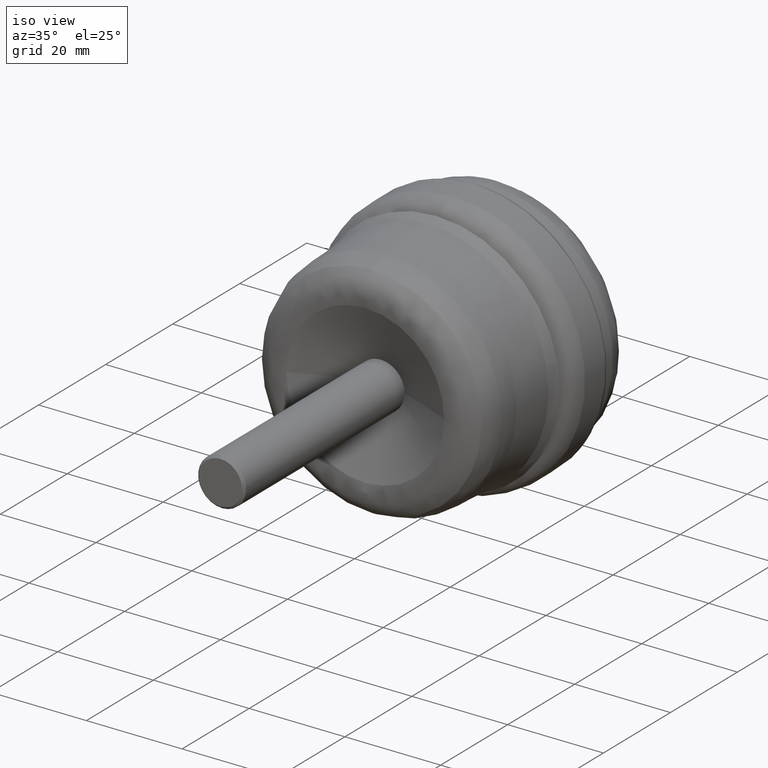
[diagram: clean part render]
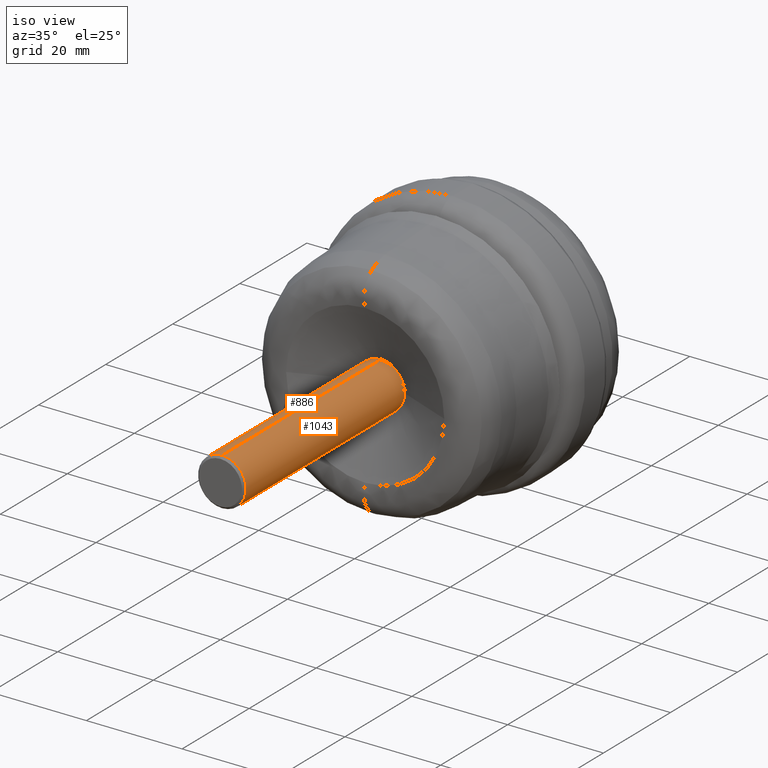
[diagram: same view with one multi-face feature highlighted, each face labeled with its STEP entity id]
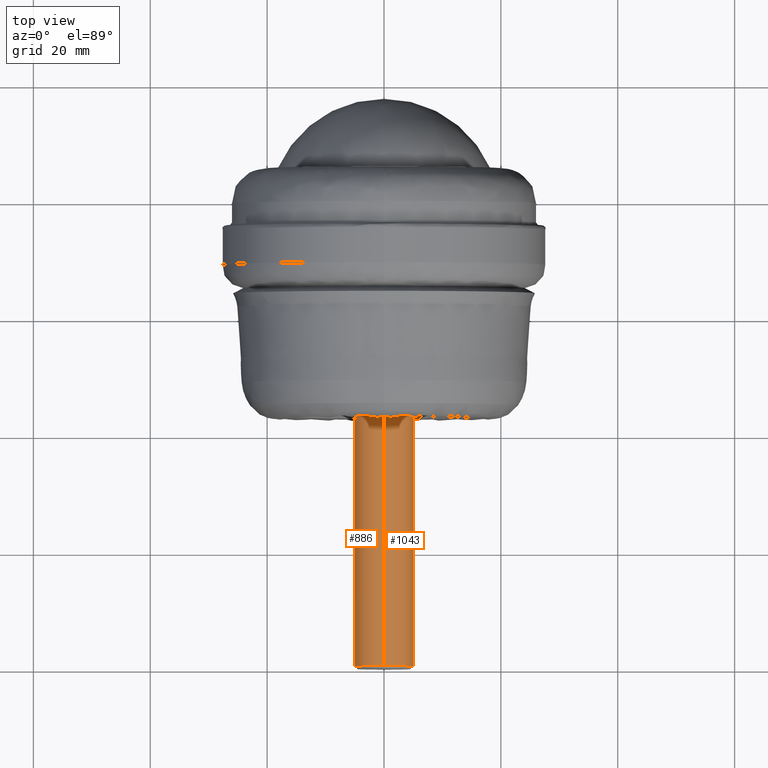
[diagram: same view with one multi-face feature highlighted, each face labeled with its STEP entity id]
A machine part, iso view. The highlighted faces form ONE feature: a constant-radius fillet chain: 2 tangent blend faces with common blend radius 5 mm. The faces share edges in the B-rep.
A second angle (top view) of the same feature is appended — it is thin or edge-on in the first view.
Their STEP definitions:
[1] entity #1043 (Cylinder):
#1 = CARTESIAN_POINT ( 'NONE',  ( 6.123233995736765296E-16, 47.79664580457854584, 4.999999999999999112 ) ) ;
#65 = CARTESIAN_POINT ( 'NONE',  ( 0.0000000000000000000, 0.0000000000000000000, 0.0000000000000000000 ) ) ;
#77 = VERTEX_POINT ( 'NONE', #252 ) ;
#86 = ORIENTED_EDGE ( 'NONE', *, *, #1460, .T. ) ;
#95 = EDGE_CURVE ( 'NONE', #1481, #772, #986, .T. ) ;
#252 = CARTESIAN_POINT ( 'NONE',  ( 6.123233995745674494E-16, 0.4999999999999983902, -5.000000000007275069 ) ) ;
#327 = CIRCLE ( 'NONE', #1037, 4.999999999999999112 ) ;
#362 = DIRECTION ( 'NONE',  ( 0.0000000000000000000, 0.0000000000000000000, -1.000000000000000000 ) ) ;
#402 = ORIENTED_EDGE ( 'NONE', *, *, #95, .T. ) ;
#429 = EDGE_LOOP ( 'NONE', ( #402, #86, #765, #1680, #1711 ) ) ;
#451 = EDGE_CURVE ( 'NONE', #610, #77, #1009, .T. ) ;
#506 = VECTOR ( 'NONE', #1267, 1000.000000000000000 ) ;
#557 = VERTEX_POINT ( 'NONE', #806 ) ;
#560 = CARTESIAN_POINT ( 'NONE',  ( 0.0000000000000000000, 47.79664580457854584, 0.0000000000000000000 ) ) ;
#603 = EDGE_CURVE ( 'NONE', #557, #1481, #327, .T. ) ;
#610 = VERTEX_POINT ( 'NONE', #999 ) ;
#689 = DIRECTION ( 'NONE',  ( -0.0000000000000000000, -1.000000000000000000, -0.0000000000000000000 ) ) ;
#765 = ORIENTED_EDGE ( 'NONE', *, *, #451, .T. ) ;
#772 = VERTEX_POINT ( 'NONE', #1 ) ;
#804 = DIRECTION ( 'NONE',  ( -0.0000000000000000000, -1.000000000000000000, -0.0000000000000000000 ) ) ;
#806 = CARTESIAN_POINT ( 'NONE',  ( 0.0000000000000000000, 47.79664580457854584, -4.999999999999999112 ) ) ;
#948 = AXIS2_PLACEMENT_3D ( 'NONE', #65, #804, #362 ) ;
#952 = CARTESIAN_POINT ( 'NONE',  ( 0.0000000000000000000, 0.0000000000000000000, -4.999999999999999112 ) ) ;
#986 = CIRCLE ( 'NONE', #1332, 4.999999999999999112 ) ;
#999 = CARTESIAN_POINT ( 'NONE',  ( 0.0000000000000000000, 0.4999999999999983902, 5.000000000007275069 ) ) ;
#1009 = CIRCLE ( 'NONE', #1394, 4.999999999999999112 ) ;
#1037 = AXIS2_PLACEMENT_3D ( 'NONE', #560, #689, #1699 ) ;
#1040 = LINE ( 'NONE', #1340, #1223 ) ;
#1043 = ADVANCED_FACE ( 'NONE', ( #1458 ), #1403, .T. ) ;
#1050 = DIRECTION ( 'NONE',  ( -0.0000000000000000000, -1.000000000000000000, -0.0000000000000000000 ) ) ;
#1084 = EDGE_CURVE ( 'NONE', #557, #77, #1655, .T. ) ;
#1223 = VECTOR ( 'NONE', #1050, 1000.000000000000000 ) ;
#1267 = DIRECTION ( 'NONE',  ( -0.0000000000000000000, -1.000000000000000000, -0.0000000000000000000 ) ) ;
#1282 = DIRECTION ( 'NONE',  ( -0.0000000000000000000, -1.000000000000000000, -0.0000000000000000000 ) ) ;
#1288 = DIRECTION ( 'NONE',  ( 0.0000000000000000000, 0.0000000000000000000, -1.000000000000000000 ) ) ;
#1332 = AXIS2_PLACEMENT_3D ( 'NONE', #1445, #1282, #1288 ) ;
#1340 = CARTESIAN_POINT ( 'NONE',  ( 6.123233995736765296E-16, 0.0000000000000000000, 4.999999999999999112 ) ) ;
#1394 = AXIS2_PLACEMENT_3D ( 'NONE', #1544, #1814, #1673 ) ;
#1403 = CYLINDRICAL_SURFACE ( 'NONE', #948, 4.999999999999999112 ) ;
#1445 = CARTESIAN_POINT ( 'NONE',  ( 0.0000000000000000000, 47.79664580457854584, 0.0000000000000000000 ) ) ;
#1458 = FACE_OUTER_BOUND ( 'NONE', #429, .T. ) ;
#1460 = EDGE_CURVE ( 'NONE', #772, #610, #1040, .T. ) ;
#1481 = VERTEX_POINT ( 'NONE', #1639 ) ;
#1544 = CARTESIAN_POINT ( 'NONE',  ( 0.0000000000000000000, 0.4999999999999983902, 0.0000000000000000000 ) ) ;
#1639 = CARTESIAN_POINT ( 'NONE',  ( 4.999999999999999112, 47.79664580457854584, 0.0000000000000000000 ) ) ;
#1655 = LINE ( 'NONE', #952, #506 ) ;
#1673 = DIRECTION ( 'NONE',  ( 0.0000000000000000000, 0.0000000000000000000, -1.000000000000000000 ) ) ;
#1680 = ORIENTED_EDGE ( 'NONE', *, *, #1084, .F. ) ;
#1699 = DIRECTION ( 'NONE',  ( 0.0000000000000000000, 0.0000000000000000000, -1.000000000000000000 ) ) ;
#1711 = ORIENTED_EDGE ( 'NONE', *, *, #603, .T. ) ;
#1814 = DIRECTION ( 'NONE',  ( 0.0000000000000000000, 1.000000000000000000, 0.0000000000000000000 ) ) ;
[2] entity #886 (Cylinder):
#1 = CARTESIAN_POINT ( 'NONE',  ( 6.123233995736765296E-16, 47.79664580457854584, 4.999999999999999112 ) ) ;
#17 = AXIS2_PLACEMENT_3D ( 'NONE', #1518, #1368, #71 ) ;
#66 = CARTESIAN_POINT ( 'NONE',  ( 0.0000000000000000000, 47.79664580457854584, 0.0000000000000000000 ) ) ;
#71 = DIRECTION ( 'NONE',  ( 0.0000000000000000000, 0.0000000000000000000, -1.000000000000000000 ) ) ;
#77 = VERTEX_POINT ( 'NONE', #252 ) ;
#122 = ORIENTED_EDGE ( 'NONE', *, *, #1084, .T. ) ;
#213 = DIRECTION ( 'NONE',  ( -0.0000000000000000000, -1.000000000000000000, -0.0000000000000000000 ) ) ;
#229 = FACE_OUTER_BOUND ( 'NONE', #750, .T. ) ;
#250 = DIRECTION ( 'NONE',  ( 0.0000000000000000000, 1.000000000000000000, 0.0000000000000000000 ) ) ;
#252 = CARTESIAN_POINT ( 'NONE',  ( 6.123233995745674494E-16, 0.4999999999999983902, -5.000000000007275069 ) ) ;
#322 = EDGE_CURVE ( 'NONE', #772, #358, #1032, .T. ) ;
#358 = VERTEX_POINT ( 'NONE', #1377 ) ;
#440 = ORIENTED_EDGE ( 'NONE', *, *, #1557, .T. ) ;
#473 = ORIENTED_EDGE ( 'NONE', *, *, #1182, .T. ) ;
#506 = VECTOR ( 'NONE', #1267, 1000.000000000000000 ) ;
#512 = DIRECTION ( 'NONE',  ( -0.0000000000000000000, -1.000000000000000000, -0.0000000000000000000 ) ) ;
#523 = DIRECTION ( 'NONE',  ( 0.0000000000000000000, 0.0000000000000000000, -1.000000000000000000 ) ) ;
#557 = VERTEX_POINT ( 'NONE', #806 ) ;
#610 = VERTEX_POINT ( 'NONE', #999 ) ;
#611 = CYLINDRICAL_SURFACE ( 'NONE', #669, 4.999999999999999112 ) ;
#669 = AXIS2_PLACEMENT_3D ( 'NONE', #903, #512, #523 ) ;
#697 = DIRECTION ( 'NONE',  ( 0.0000000000000000000, 0.0000000000000000000, -1.000000000000000000 ) ) ;
#750 = EDGE_LOOP ( 'NONE', ( #1868, #1634, #440, #122, #473 ) ) ;
#772 = VERTEX_POINT ( 'NONE', #1 ) ;
#806 = CARTESIAN_POINT ( 'NONE',  ( 0.0000000000000000000, 47.79664580457854584, -4.999999999999999112 ) ) ;
#852 = CIRCLE ( 'NONE', #1511, 4.999999999999999112 ) ;
#886 = ADVANCED_FACE ( 'NONE', ( #229 ), #611, .T. ) ;
#903 = CARTESIAN_POINT ( 'NONE',  ( 0.0000000000000000000, 0.0000000000000000000, 0.0000000000000000000 ) ) ;
#952 = CARTESIAN_POINT ( 'NONE',  ( 0.0000000000000000000, 0.0000000000000000000, -4.999999999999999112 ) ) ;
#991 = DIRECTION ( 'NONE',  ( 0.0000000000000000000, 0.0000000000000000000, -1.000000000000000000 ) ) ;
#999 = CARTESIAN_POINT ( 'NONE',  ( 0.0000000000000000000, 0.4999999999999983902, 5.000000000007275069 ) ) ;
#1032 = CIRCLE ( 'NONE', #17, 4.999999999999999112 ) ;
#1040 = LINE ( 'NONE', #1340, #1223 ) ;
#1050 = DIRECTION ( 'NONE',  ( -0.0000000000000000000, -1.000000000000000000, -0.0000000000000000000 ) ) ;
#1084 = EDGE_CURVE ( 'NONE', #557, #77, #1655, .T. ) ;
#1138 = CARTESIAN_POINT ( 'NONE',  ( 0.0000000000000000000, 0.4999999999999983902, 0.0000000000000000000 ) ) ;
#1182 = EDGE_CURVE ( 'NONE', #77, #610, #852, .T. ) ;
#1223 = VECTOR ( 'NONE', #1050, 1000.000000000000000 ) ;
#1267 = DIRECTION ( 'NONE',  ( -0.0000000000000000000, -1.000000000000000000, -0.0000000000000000000 ) ) ;
#1340 = CARTESIAN_POINT ( 'NONE',  ( 6.123233995736765296E-16, 0.0000000000000000000, 4.999999999999999112 ) ) ;
#1368 = DIRECTION ( 'NONE',  ( -0.0000000000000000000, -1.000000000000000000, -0.0000000000000000000 ) ) ;
#1377 = CARTESIAN_POINT ( 'NONE',  ( -4.999999999999999112, 47.79664580457854584, 1.317440557695513322E-15 ) ) ;
#1460 = EDGE_CURVE ( 'NONE', #772, #610, #1040, .T. ) ;
#1511 = AXIS2_PLACEMENT_3D ( 'NONE', #1138, #250, #697 ) ;
#1518 = CARTESIAN_POINT ( 'NONE',  ( 0.0000000000000000000, 47.79664580457854584, 0.0000000000000000000 ) ) ;
#1527 = AXIS2_PLACEMENT_3D ( 'NONE', #66, #213, #991 ) ;
#1557 = EDGE_CURVE ( 'NONE', #358, #557, #1749, .T. ) ;
#1634 = ORIENTED_EDGE ( 'NONE', *, *, #322, .T. ) ;
#1655 = LINE ( 'NONE', #952, #506 ) ;
#1749 = CIRCLE ( 'NONE', #1527, 4.999999999999999112 ) ;
#1868 = ORIENTED_EDGE ( 'NONE', *, *, #1460, .F. ) ;